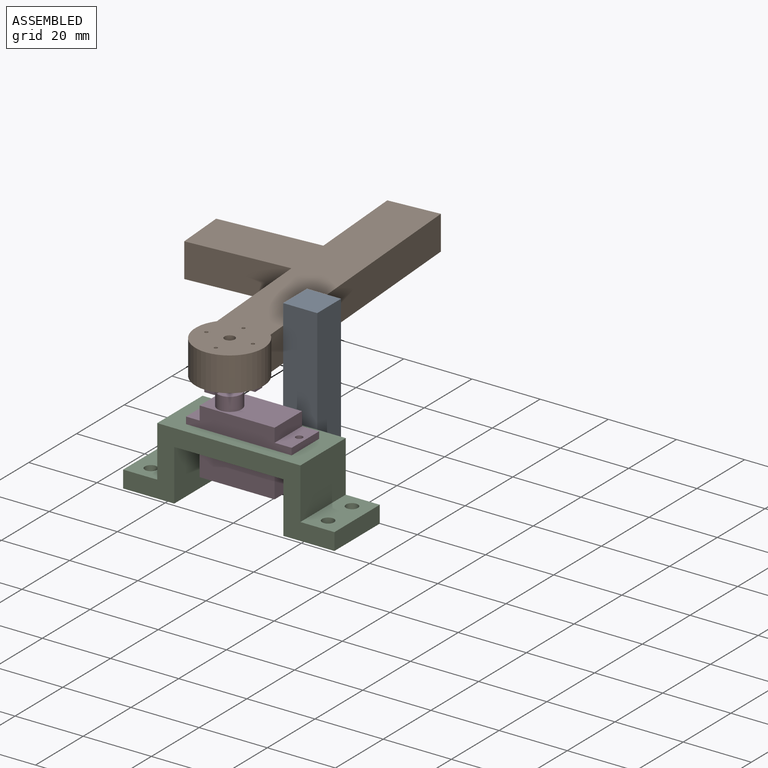
[diagram: assembled view]
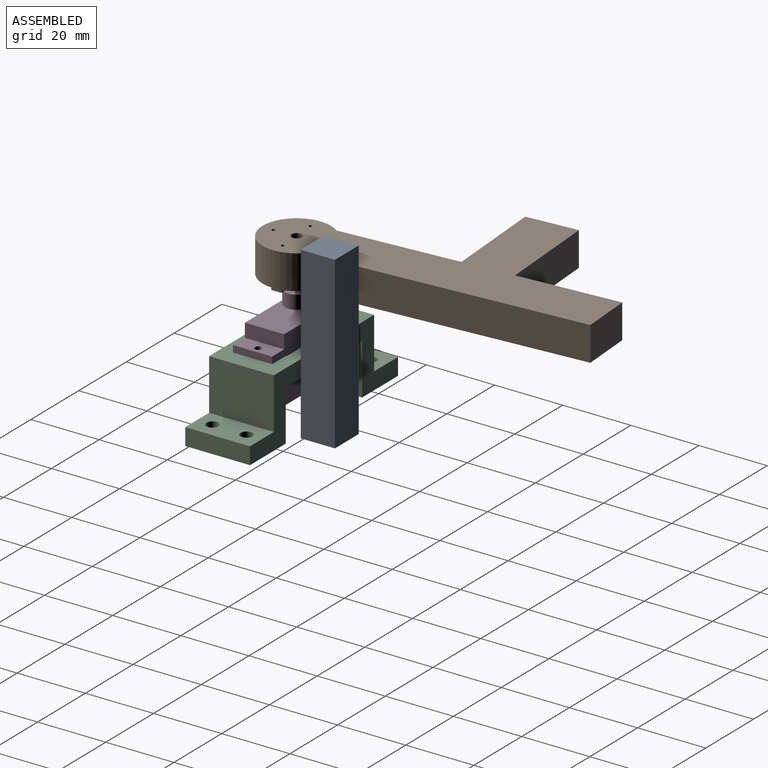
[diagram: assembled view, second angle]
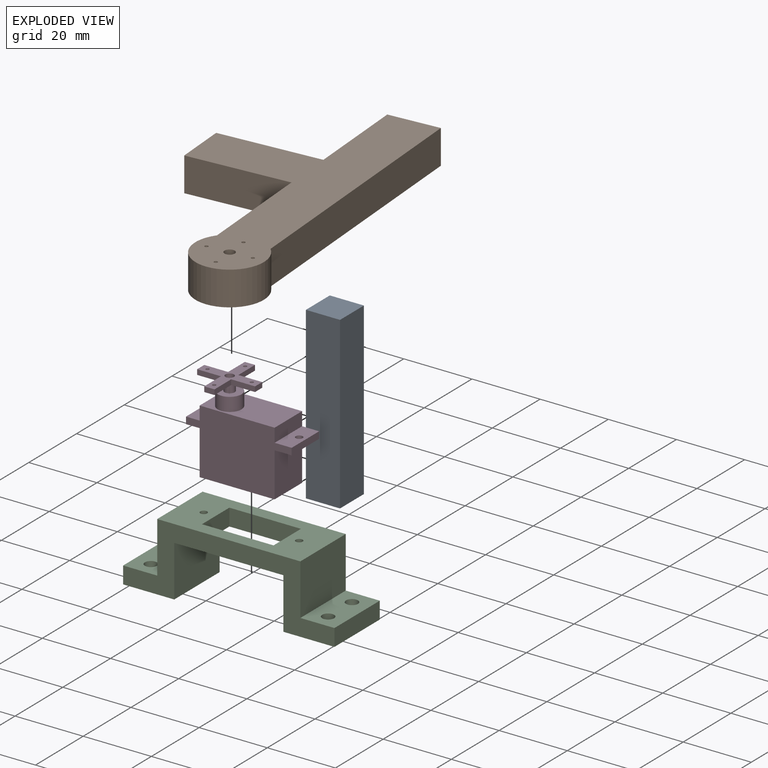
[diagram: exploded view]
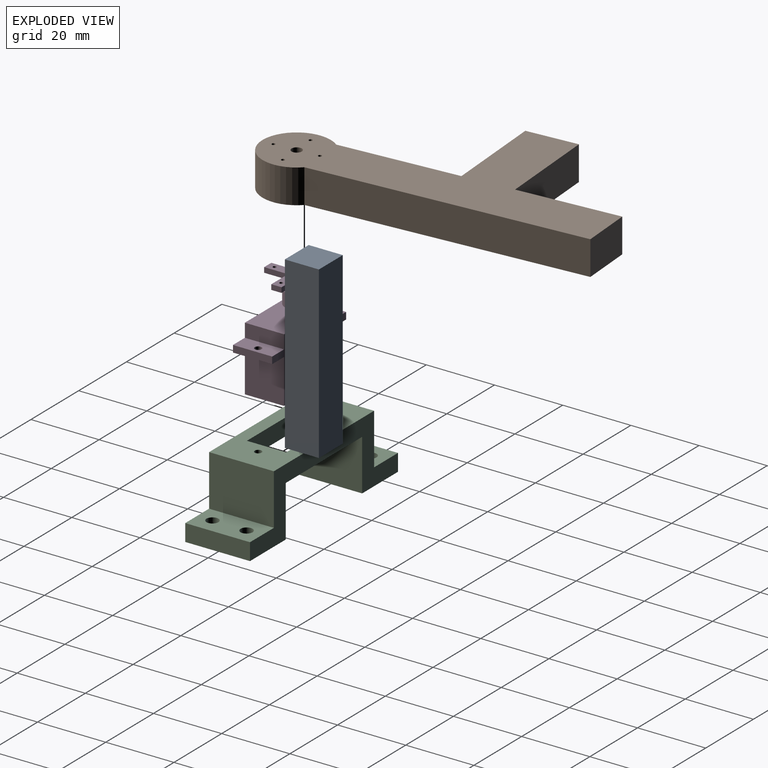
[diagram: exploded view, second angle]
ASSEMBLY  parts=4 mates=2
PART A: 8 faces, bbox 10x10x50 mm
  f0: plane 50x10mm, normal (1,0,0), area 500mm2, adj f1,f3,f4,f5
  f1: plane 50x10mm, normal (0,1,0), area 500mm2, adj f0,f2,f4,f5
  f2: plane 50x10mm, normal (-1,0,0), area 500mm2, adj f1,f3,f4,f5
  f3: plane 50x10mm, normal (0,-1,0), area 500mm2, adj f0,f2,f4,f5
  f4: plane 10x10mm, normal (0,0,1), area 100mm2, adj f0,f1,f2,f3
  f5: plane 10x10mm, normal (0,0,-1), area 92.9mm2, adj f0,f1,f2,f3,f6
  f6: cylinder r=1.5mm len=20mm, axis (0,0,-1), area 188.5mm2, adj f5,f7
  f7: plane 3x3mm, normal (0,0,-1), area 7.1mm2, adj f6
PART B: 15 faces, bbox 96.6x47.5x10 mm
  f0: cylinder r=10mm len=20mm, axis (0,0,-1), area 458.7mm2, adj f1,f12,f13,f14
  f1: plane 80x10mm, normal (0,1,0), area 800mm2, adj f0,f2,f13,f14
  f2: plane 15x10mm, normal (-1,0,0), area 150mm2, adj f1,f3,f13,f14
  f3: plane 30x10mm, normal (0,-1,0), area 300mm2, adj f2,f4,f13,f14
  f4: plane 30x10mm, normal (-1,0,0), area 300mm2, adj f3,f5,f13,f14
  f5: plane 15x10mm, normal (0,-1,0), area 150mm2, adj f4,f6,f13,f14
  f6: plane 30x10mm, normal (1,0,0), area 300mm2, adj f5,f12,f13,f14
  f7: cylinder r=1.5mm len=10mm, axis (0,0,-1), area 94.2mm2, adj f13,f14
  f8: cylinder r=0.5mm len=10mm, axis (0,0,-1), area 31.4mm2, adj f13,f14
  f9: cylinder r=0.5mm len=10mm, axis (0,0,-1), area 31.4mm2, adj f13,f14
  f10: cylinder r=0.5mm len=10mm, axis (0,0,-1), area 31.4mm2, adj f13,f14
  f11: cylinder r=0.5mm len=10mm, axis (0,0,-1), area 31.4mm2, adj f13,f14
  f12: plane 35x10mm, normal (0,-1,0), area 350mm2, adj f0,f6,f13,f14
  f13: plane 96.61x47.5mm, normal (0,0,1), area 1918.8mm2, adj f0,f1,f2,f3,f4,f5,f6,f7
  f14: plane 96.61x47.5mm, normal (0,0,-1), area 1918.8mm2, adj f0,f1,f2,f3,f4,f5,f6,f7
PART C: 24 faces, bbox 62x19x20 mm
  f0: plane 32x19mm, normal (0,0,-1), area 360.2mm2, adj f6,f7,f12,f13,f14,f15,f16,f17
  f1: plane 42x19mm, normal (0,0,1), area 550.2mm2, adj f2,f11,f12,f13,f14,f15,f16,f17
  f2: plane 19x15mm, normal (-1,0,0), area 285mm2, adj f1,f3,f12,f13
  f3: plane 19x10mm, normal (0,0,1), area 170.8mm2, adj f2,f4,f12,f13,f22,f23
  f4: plane 19x5mm, normal (-1,0,0), area 95mm2, adj f3,f5,f12,f13
  f5: plane 19x15mm, normal (0,0,-1), area 265.8mm2, adj f4,f6,f12,f13,f22,f23
  f6: plane 19x15mm, normal (1,0,0), area 285mm2, adj f0,f5,f12,f13
  f7: plane 19x15mm, normal (-1,0,0), area 285mm2, adj f0,f8,f12,f13
  f8: plane 19x15mm, normal (0,0,-1), area 265.8mm2, adj f7,f9,f12,f13,f20,f21
  f9: plane 19x5mm, normal (1,0,0), area 95mm2, adj f8,f10,f12,f13
  f10: plane 19x10mm, normal (0,0,1), area 170.8mm2, adj f9,f11,f12,f13,f20,f21
  f11: plane 19x15mm, normal (1,0,0), area 285mm2, adj f1,f10,f12,f13
  f12: plane 62x20mm, normal (0,-1,0), area 460mm2, adj f0,f1,f2,f3,f4,f5,f6,f7
  f13: plane 62x20mm, normal (0,1,0), area 460mm2, adj f0,f1,f2,f3,f4,f5,f6,f7
  f14: plane 11.5x5mm, normal (-1,0,0), area 57.5mm2, adj f0,f1,f15,f17
  f15: plane 21x5mm, normal (0,-1,0), area 105mm2, adj f0,f1,f14,f16
  f16: plane 11.5x5mm, normal (1,0,0), area 57.5mm2, adj f0,f1,f15,f17
  f17: plane 21x5mm, normal (0,1,0), area 105mm2, adj f0,f1,f14,f16
  f18: cylinder r=1mm len=5mm, axis (0,0,1), area 31.4mm2, adj f0,f1
  f19: cylinder r=1mm len=5mm, axis (0,0,1), area 31.4mm2, adj f0,f1
  f20: cylinder r=1.75mm len=5mm, axis (0,0,1), area 55mm2, adj f8,f10
  f21: cylinder r=1.75mm len=5mm, axis (0,0,1), area 55mm2, adj f8,f10
  f22: cylinder r=1.75mm len=5mm, axis (0,0,1), area 55mm2, adj f3,f5
  f23: cylinder r=1.75mm len=5mm, axis (0,0,1), area 55mm2, adj f3,f5
PART D: 41 faces, bbox 31x17x27 mm
  f0: plane 11.5x4mm, normal (-1,0,0), area 46mm2, adj f3,f5,f6,f16
  f1: plane 13x11.5mm, normal (1,0,0), area 149.5mm2, adj f3,f5,f7,f11
  f2: plane 13x11.5mm, normal (-1,0,0), area 149.5mm2, adj f3,f5,f7,f15
  f3: plane 26x19mm, normal (0,-1,0), area 426mm2, adj f0,f1,f2,f4,f6,f7,f10,f15
  f4: plane 11.5x4mm, normal (1,0,0), area 46mm2, adj f3,f5,f6,f13
  f5: plane 26x19mm, normal (0,1,0), area 426mm2, adj f0,f1,f2,f4,f6,f7,f12,f15
  f6: plane 22x11.5mm, normal (0,0,1), area 214.5mm2, adj f0,f3,f4,f5,f8
  f7: plane 22x11.5mm, normal (0,0,-1), area 253mm2, adj f1,f2,f3,f5
  f8: cylinder r=3.5mm len=7mm, axis (0,0,-1), area 88mm2, adj f6,f9
  f9: plane 7x7mm, normal (0,0,1), area 31.4mm2, adj f8,f18
  f10: plane 5x2mm, normal (0,-1,0), area 10mm2, adj f3,f11,f13,f14
  f11: plane 11.5x5mm, normal (0,0,-1), area 54.4mm2, adj f1,f10,f12,f14,f20
  f12: plane 5x2mm, normal (0,1,0), area 10mm2, adj f5,f11,f13,f14
  f13: plane 11.5x5mm, normal (0,0,1), area 54.4mm2, adj f4,f10,f12,f14,f20
  f14: plane 11.5x2mm, normal (1,0,0), area 23mm2, adj f10,f11,f12,f13
  f15: plane 11.5x4mm, normal (0,0,-1), area 42.9mm2, adj f2,f3,f5,f17,f19
  f16: plane 11.5x4mm, normal (0,0,1), area 42.9mm2, adj f0,f3,f5,f17,f19
  f17: plane 11.5x2mm, normal (-1,0,0), area 23mm2, adj f3,f5,f15,f16
  f18: cylinder r=1.5mm len=3mm, axis (0,0,-1), area 23.6mm2, adj f9,f34
  f19: cylinder r=1mm len=2mm, axis (0,0,1), area 12.6mm2, adj f15,f16
  f20: cylinder r=1mm len=2mm, axis (0,0,1), area 12.6mm2, adj f11,f13
  f21: plane 7x1.5mm, normal (0,1,0), area 10.5mm2, adj f22,f32,f33,f34
  f22: plane 3x1.5mm, normal (-1,0,0), area 4.5mm2, adj f21,f23,f33,f34
  f23: plane 7x1.5mm, normal (0,-1,0), area 10.5mm2, adj f22,f24,f33,f34
  f24: plane 7x1.5mm, normal (-1,0,0), area 10.5mm2, adj f23,f25,f33,f34
  f25: plane 3x1.5mm, normal (0,-1,0), area 4.5mm2, adj f24,f26,f33,f34
  f26: plane 7x1.5mm, normal (1,0,0), area 10.5mm2, adj f25,f27,f33,f34
  f27: plane 7x1.5mm, normal (0,-1,0), area 10.5mm2, adj f26,f28,f33,f34
  f28: plane 3x1.5mm, normal (1,0,0), area 4.5mm2, adj f27,f29,f33,f34
  f29: plane 7x1.5mm, normal (0,1,0), area 10.5mm2, adj f28,f30,f33,f34
  f30: plane 7x1.5mm, normal (1,0,0), area 10.5mm2, adj f29,f31,f33,f34
  f31: plane 3x1.5mm, normal (0,1,0), area 4.5mm2, adj f30,f32,f33,f34
  f32: plane 7x1.5mm, normal (-1,0,0), area 10.5mm2, adj f21,f31,f33,f34
  f33: plane 17x17mm, normal (0,0,1), area 84.9mm2, adj f21,f22,f23,f24,f25,f26,f27,f28
  f34: plane 17x17mm, normal (0,0,-1), area 82.8mm2, adj f18,f21,f22,f23,f24,f25,f26,f27
  f35: cylinder r=0.5mm len=1.5mm, axis (0,0,1), area 4.7mm2, adj f33,f34
  f36: cylinder r=0.5mm len=1.5mm, axis (0,0,1), area 4.7mm2, adj f33,f34
  f37: cylinder r=0.5mm len=1.5mm, axis (0,0,1), area 4.7mm2, adj f33,f34
  f38: cylinder r=0.5mm len=1.5mm, axis (0,0,1), area 4.7mm2, adj f33,f34
  f39: cylinder r=1.25mm len=2.5mm, axis (0,0,1), area 15.7mm2, adj f33,f40
  f40: plane 2.5x2.5mm, normal (0,0,1), area 4.9mm2, adj f39
PLACE A t=(6.67,6.38,-17.39)mm
PLACE B rot(axis=(0,0,-1),85.8deg) t=(-5,-11.5,16.5)mm
PLACE C at identity fixed
PLACE D t=(10.75,-5.7,-10.5)mm
MATE revolute B.f7 <-> D.f8  axis (0,0,-1) through (-5,-11.5,16.5)mm
MATE fastened D.f20 <-> C.f18  axis (0,0,-1) through (14,-9.5,2.5)mm
